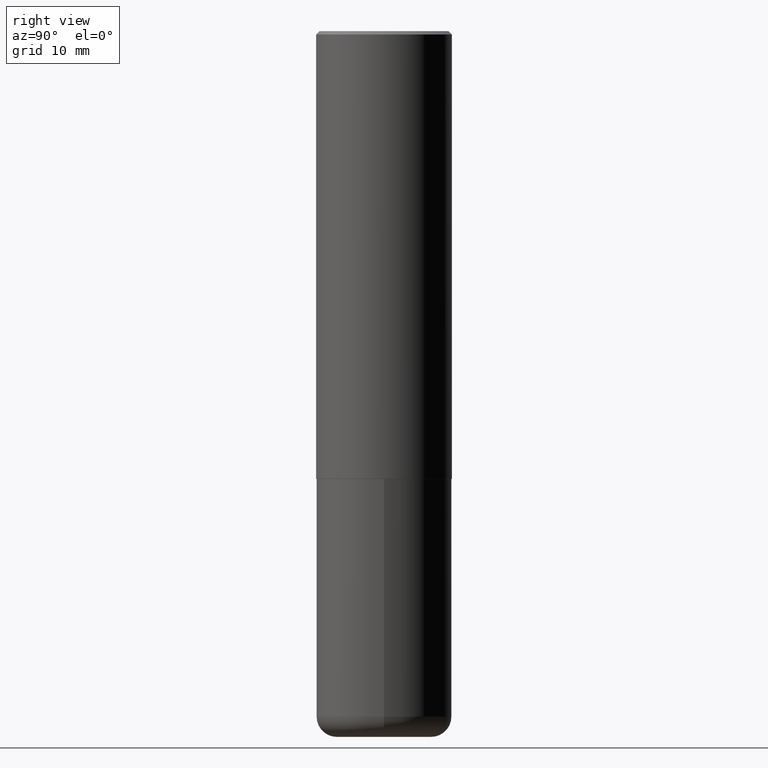
[diagram: clean part render]
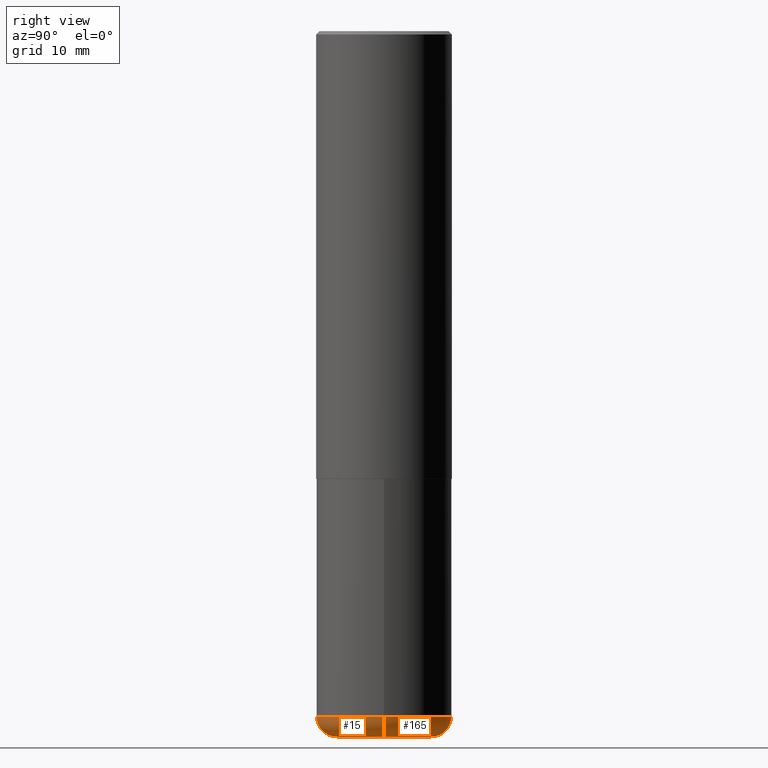
[diagram: same view with one multi-face feature highlighted, each face labeled with its STEP entity id]
A machine part, right view. The highlighted faces form ONE feature: a constant-radius fillet chain: 2 tangent blend faces with common blend radius 2.9997 mm. The faces share edges in the B-rep.
Their STEP definitions:
[1] entity #165 (Torus):
#18 = CARTESIAN_POINT ( 'NONE',  ( 9.724162160914577144E-29, -1.388352639577588421E-14, -3.976400000000000379 ) ) ;
#27 = EDGE_CURVE ( 'NONE', #108, #249, #233, .T. ) ;
#43 = CIRCLE ( 'NONE', #101, 0.1180999999999999966 ) ;
#49 = DIRECTION ( 'NONE',  ( -1.000000000000000000, 7.105427357601005014E-15, 0.000000000000000000 ) ) ;
#70 = EDGE_LOOP ( 'NONE', ( #85, #120, #312, #194 ) ) ;
#81 = FACE_OUTER_BOUND ( 'NONE', #70, .T. ) ;
#85 = ORIENTED_EDGE ( 'NONE', *, *, #252, .T. ) ;
#92 = EDGE_CURVE ( 'NONE', #218, #94, #43, .T. ) ;
#94 = VERTEX_POINT ( 'NONE', #171 ) ;
#101 = AXIS2_PLACEMENT_3D ( 'NONE', #386, #355, #231 ) ;
#107 = EDGE_CURVE ( 'NONE', #94, #249, #162, .T. ) ;
#108 = VERTEX_POINT ( 'NONE', #348 ) ;
#120 = ORIENTED_EDGE ( 'NONE', *, *, #27, .T. ) ;
#122 = DIRECTION ( 'NONE',  ( 7.105427357601001859E-15, 1.000000000000000000, -3.491481338843145583E-15 ) ) ;
#137 = DIRECTION ( 'NONE',  ( 1.000000000000000000, -6.982962677686267499E-15, 0.000000000000000000 ) ) ;
#140 = AXIS2_PLACEMENT_3D ( 'NONE', #412, #122, #49 ) ;
#145 = DIRECTION ( 'NONE',  ( -2.445468806185136597E-29, 3.491481338843145583E-15, 1.000000000000000000 ) ) ;
#162 = CIRCLE ( 'NONE', #185, 0.3937000000000000499 ) ;
#163 = AXIS2_PLACEMENT_3D ( 'NONE', #18, #271, #246 ) ;
#165 = ADVANCED_FACE ( 'NONE', ( #81 ), #224, .T. ) ;
#171 = CARTESIAN_POINT ( 'NONE',  ( 0.3937000000000000499, -1.663271880198097216E-14, -3.976400000000000823 ) ) ;
#176 = CARTESIAN_POINT ( 'NONE',  ( -0.3937000000000000499, -1.108611964508837021E-14, -3.976400000000000823 ) ) ;
#185 = AXIS2_PLACEMENT_3D ( 'NONE', #393, #324, #137 ) ;
#194 = ORIENTED_EDGE ( 'NONE', *, *, #92, .F. ) ;
#196 = AXIS2_PLACEMENT_3D ( 'NONE', #301, #145, #272 ) ;
#218 = VERTEX_POINT ( 'NONE', #397 ) ;
#224 = TOROIDAL_SURFACE ( 'NONE', #163, 0.2756000000000000116, 0.1181000000000000105 ) ;
#231 = DIRECTION ( 'NONE',  ( 1.000000000000000000, -6.982962677686273021E-15, 0.000000000000000000 ) ) ;
#233 = CIRCLE ( 'NONE', #140, 0.1180999999999999966 ) ;
#234 = CIRCLE ( 'NONE', #196, 0.2756000000000000116 ) ;
#246 = DIRECTION ( 'NONE',  ( 1.000000000000000000, -6.982962677686268288E-15, 4.883557194083112901E-29 ) ) ;
#249 = VERTEX_POINT ( 'NONE', #176 ) ;
#252 = EDGE_CURVE ( 'NONE', #218, #108, #234, .T. ) ;
#271 = DIRECTION ( 'NONE',  ( -2.445468806185136597E-29, 3.491481338843145583E-15, 1.000000000000000000 ) ) ;
#272 = DIRECTION ( 'NONE',  ( 1.000000000000000000, -6.982962677686265922E-15, 0.000000000000000000 ) ) ;
#301 = CARTESIAN_POINT ( 'NONE',  ( 1.001297202692504215E-28, -1.429587034189326149E-14, -4.094500000000000028 ) ) ;
#312 = ORIENTED_EDGE ( 'NONE', *, *, #107, .F. ) ;
#324 = DIRECTION ( 'NONE',  ( -2.445468806185136597E-29, 3.491481338843145583E-15, 1.000000000000000000 ) ) ;
#348 = CARTESIAN_POINT ( 'NONE',  ( -0.2756000000000000116, -1.171186710361339913E-14, -4.094500000000000028 ) ) ;
#355 = DIRECTION ( 'NONE',  ( -6.982962677686266711E-15, -1.000000000000000000, 3.491481338843145583E-15 ) ) ;
#386 = CARTESIAN_POINT ( 'NONE',  ( 0.2756000000000000116, -1.580803090974622074E-14, -3.976400000000000379 ) ) ;
#393 = CARTESIAN_POINT ( 'NONE',  ( 9.724162160914578265E-29, -1.388352639577588736E-14, -3.976400000000000823 ) ) ;
#397 = CARTESIAN_POINT ( 'NONE',  ( 0.2756000000000000116, -1.622037485586359645E-14, -4.094500000000000028 ) ) ;
#412 = CARTESIAN_POINT ( 'NONE',  ( -0.2756000000000000116, -1.192527061602104919E-14, -3.976400000000000379 ) ) ;
[2] entity #15 (Torus):
#2 = EDGE_CURVE ( 'NONE', #108, #218, #353, .T. ) ;
#15 = ADVANCED_FACE ( 'NONE', ( #335 ), #210, .T. ) ;
#22 = EDGE_LOOP ( 'NONE', ( #24, #124, #80, #74 ) ) ;
#24 = ORIENTED_EDGE ( 'NONE', *, *, #27, .F. ) ;
#27 = EDGE_CURVE ( 'NONE', #108, #249, #233, .T. ) ;
#40 = DIRECTION ( 'NONE',  ( -2.445468806185136597E-29, 3.491481338843145583E-15, 1.000000000000000000 ) ) ;
#43 = CIRCLE ( 'NONE', #101, 0.1180999999999999966 ) ;
#49 = DIRECTION ( 'NONE',  ( -1.000000000000000000, 7.105427357601005014E-15, 0.000000000000000000 ) ) ;
#52 = DIRECTION ( 'NONE',  ( 1.000000000000000000, -6.982962677686268288E-15, 4.883557194083112901E-29 ) ) ;
#60 = CIRCLE ( 'NONE', #147, 0.3937000000000000499 ) ;
#65 = AXIS2_PLACEMENT_3D ( 'NONE', #161, #87, #52 ) ;
#74 = ORIENTED_EDGE ( 'NONE', *, *, #209, .F. ) ;
#80 = ORIENTED_EDGE ( 'NONE', *, *, #92, .T. ) ;
#87 = DIRECTION ( 'NONE',  ( -2.445468806185136597E-29, 3.491481338843145583E-15, 1.000000000000000000 ) ) ;
#92 = EDGE_CURVE ( 'NONE', #218, #94, #43, .T. ) ;
#94 = VERTEX_POINT ( 'NONE', #171 ) ;
#101 = AXIS2_PLACEMENT_3D ( 'NONE', #386, #355, #231 ) ;
#108 = VERTEX_POINT ( 'NONE', #348 ) ;
#122 = DIRECTION ( 'NONE',  ( 7.105427357601001859E-15, 1.000000000000000000, -3.491481338843145583E-15 ) ) ;
#124 = ORIENTED_EDGE ( 'NONE', *, *, #2, .T. ) ;
#140 = AXIS2_PLACEMENT_3D ( 'NONE', #412, #122, #49 ) ;
#147 = AXIS2_PLACEMENT_3D ( 'NONE', #175, #40, #360 ) ;
#161 = CARTESIAN_POINT ( 'NONE',  ( 9.724162160914577144E-29, -1.388352639577588421E-14, -3.976400000000000379 ) ) ;
#171 = CARTESIAN_POINT ( 'NONE',  ( 0.3937000000000000499, -1.663271880198097216E-14, -3.976400000000000823 ) ) ;
#175 = CARTESIAN_POINT ( 'NONE',  ( 9.724162160914578265E-29, -1.388352639577588736E-14, -3.976400000000000823 ) ) ;
#176 = CARTESIAN_POINT ( 'NONE',  ( -0.3937000000000000499, -1.108611964508837021E-14, -3.976400000000000823 ) ) ;
#182 = CARTESIAN_POINT ( 'NONE',  ( 1.001297202692504215E-28, -1.429587034189326149E-14, -4.094500000000000028 ) ) ;
#209 = EDGE_CURVE ( 'NONE', #249, #94, #60, .T. ) ;
#210 = TOROIDAL_SURFACE ( 'NONE', #65, 0.2756000000000000116, 0.1181000000000000105 ) ;
#218 = VERTEX_POINT ( 'NONE', #397 ) ;
#223 = DIRECTION ( 'NONE',  ( -2.445468806185136597E-29, 3.491481338843145583E-15, 1.000000000000000000 ) ) ;
#231 = DIRECTION ( 'NONE',  ( 1.000000000000000000, -6.982962677686273021E-15, 0.000000000000000000 ) ) ;
#233 = CIRCLE ( 'NONE', #140, 0.1180999999999999966 ) ;
#249 = VERTEX_POINT ( 'NONE', #176 ) ;
#335 = FACE_OUTER_BOUND ( 'NONE', #22, .T. ) ;
#338 = DIRECTION ( 'NONE',  ( 1.000000000000000000, -6.982962677686265922E-15, 0.000000000000000000 ) ) ;
#348 = CARTESIAN_POINT ( 'NONE',  ( -0.2756000000000000116, -1.171186710361339913E-14, -4.094500000000000028 ) ) ;
#353 = CIRCLE ( 'NONE', #395, 0.2756000000000000116 ) ;
#355 = DIRECTION ( 'NONE',  ( -6.982962677686266711E-15, -1.000000000000000000, 3.491481338843145583E-15 ) ) ;
#360 = DIRECTION ( 'NONE',  ( 1.000000000000000000, -6.982962677686267499E-15, 0.000000000000000000 ) ) ;
#386 = CARTESIAN_POINT ( 'NONE',  ( 0.2756000000000000116, -1.580803090974622074E-14, -3.976400000000000379 ) ) ;
#395 = AXIS2_PLACEMENT_3D ( 'NONE', #182, #223, #338 ) ;
#397 = CARTESIAN_POINT ( 'NONE',  ( 0.2756000000000000116, -1.622037485586359645E-14, -4.094500000000000028 ) ) ;
#412 = CARTESIAN_POINT ( 'NONE',  ( -0.2756000000000000116, -1.192527061602104919E-14, -3.976400000000000379 ) ) ;